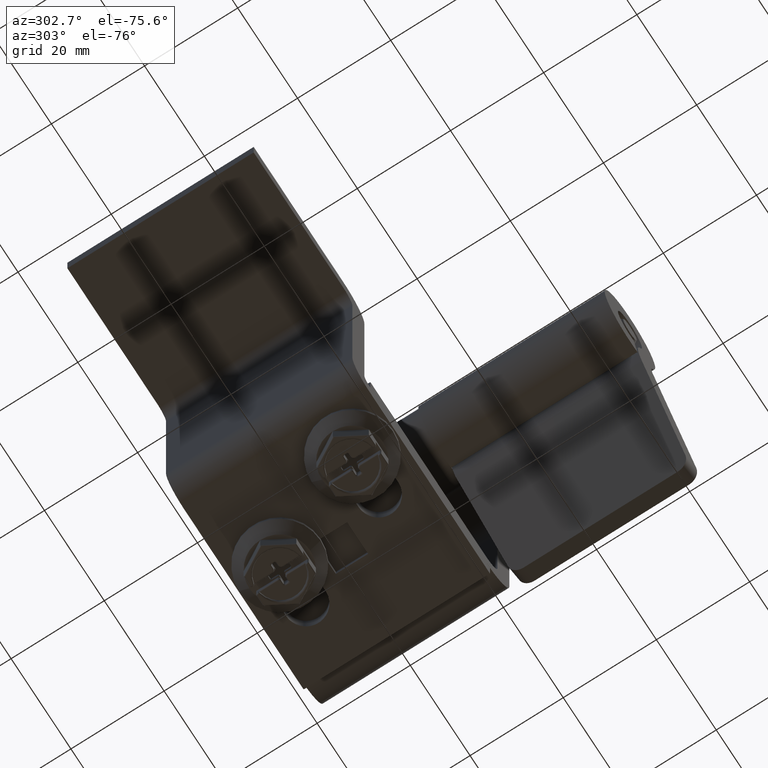
[diagram: clean part render]
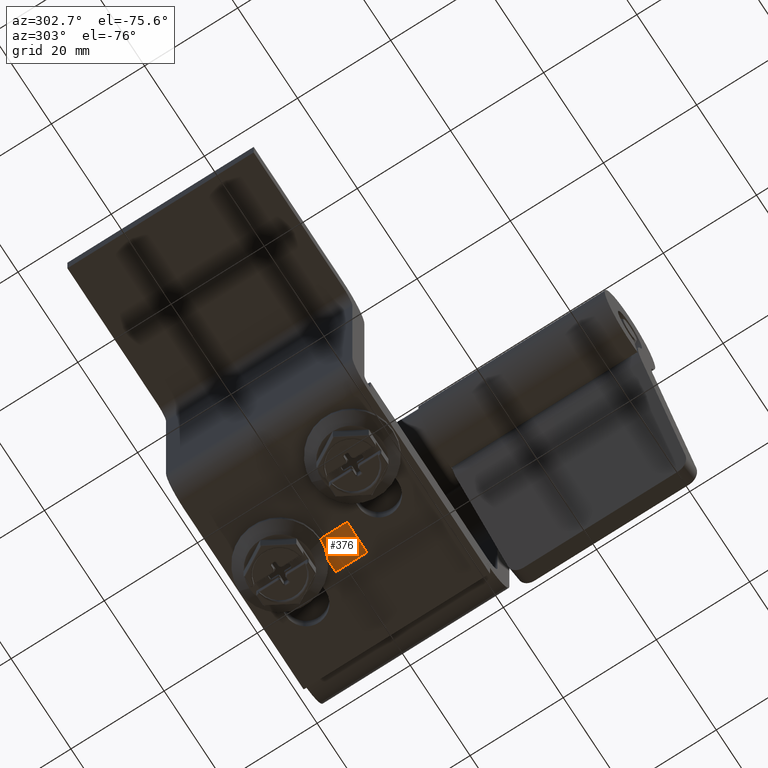
[diagram: same view with one face highlighted and labeled with its STEP entity id]
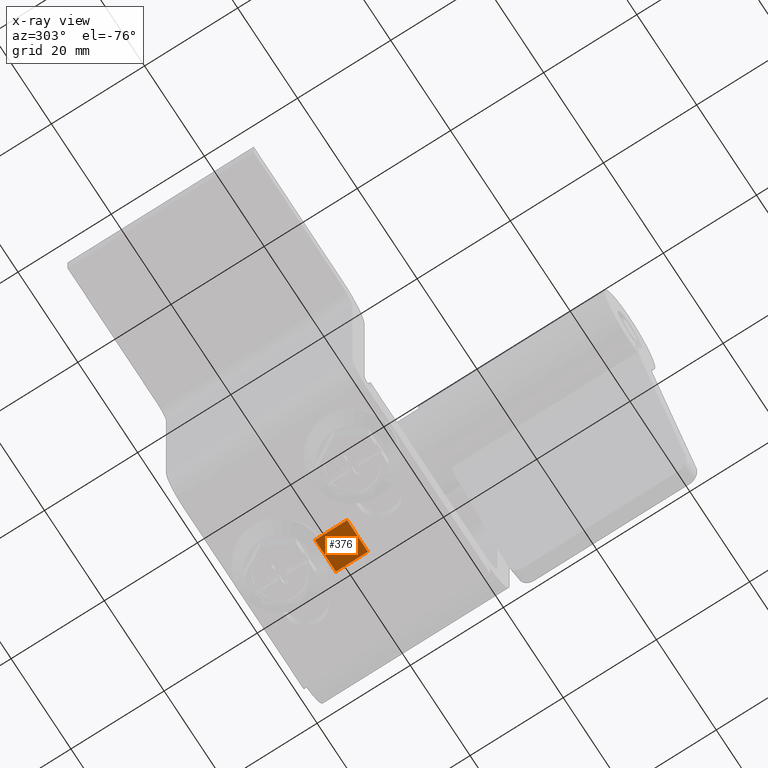
[diagram: x-ray of the same camera — body ghosted, the highlighted face saturated]
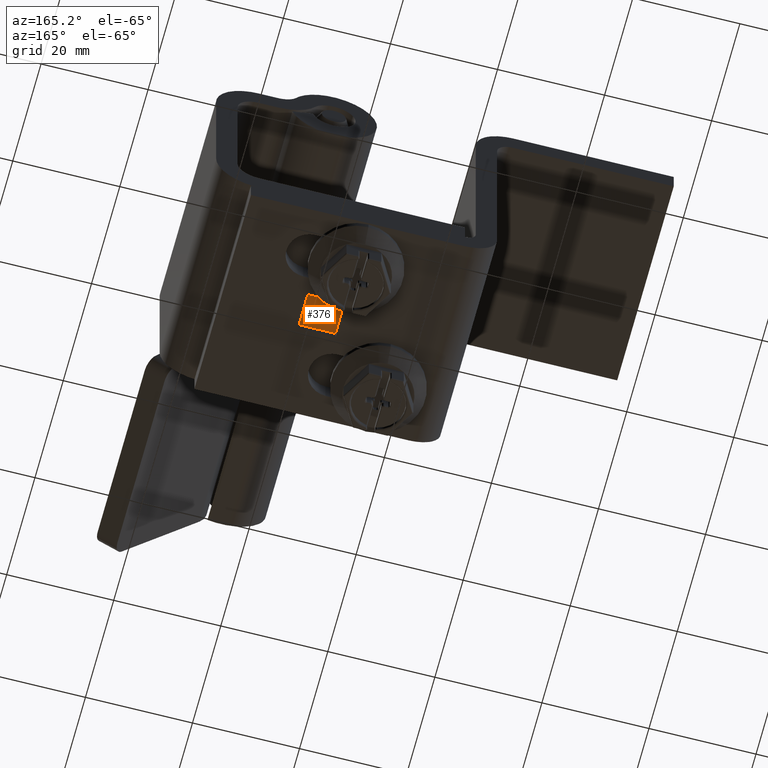
[diagram: same view with one face highlighted and labeled with its STEP entity id]
A machine part, auxiliary view. The second image highlights one B-rep face of the part: STEP entity #376.
The next image is the same camera in x-ray: the body ghosted, the highlighted face saturated — about 0% of this face is hidden behind the body in this view.
A second angle (auxiliary view) of the same face is appended — the face is thin or edge-on in the first view.
In plain terms, the highlighted planar face has unit normal (0, 0, 1).
Its self-contained STEP definition (entity closure, byte-faithful):
#376=ADVANCED_FACE('',(#1172),#1171,.F.);
#1171=PLANE('',#3972);
#1172=FACE_OUTER_BOUND('',#3973,.T.);
#3969=CARTESIAN_POINT('',(-7.20000000000E+00,-4.14000000000E+00,-4.07000000000E+01));
#3970=DIRECTION('',(0.00000000000E+00,0.00000000000E+00,1.00000000000E+00));
#3971=DIRECTION('',(1.00000000000E+00,0.00000000000E+00,0.00000000000E+00));
#3972=AXIS2_PLACEMENT_3D('',#3969,#3970,#3971);
#3973=EDGE_LOOP('',(#6039,#6040,#6041,#6042));
#6039=ORIENTED_EDGE('',*,*,#7393,.T.);
#6040=ORIENTED_EDGE('',*,*,#7391,.F.);
#6041=ORIENTED_EDGE('',*,*,#7389,.F.);
#6042=ORIENTED_EDGE('',*,*,#7387,.T.);
#7387=EDGE_CURVE('',#8908,#8901,#8909,.T.);
#7389=EDGE_CURVE('',#8908,#8921,#8922,.T.);
#7391=EDGE_CURVE('',#8921,#8934,#8935,.T.);
#7393=EDGE_CURVE('',#8901,#8934,#8947,.T.);
#8901=VERTEX_POINT('',#13739);
#8908=VERTEX_POINT('',#13743);
#8909=LINE('',#13744,#13745);
#8921=VERTEX_POINT('',#13750);
#8922=LINE('',#13751,#13752);
#8934=VERTEX_POINT('',#13757);
#8935=LINE('',#13758,#13759);
#8947=LINE('',#13764,#13765);
#13739=CARTESIAN_POINT('',(5.00000000000E-01,3.45000000000E+00,-4.07000000000E+01));
#13743=CARTESIAN_POINT('',(-6.50000000000E+00,3.45000000000E+00,-4.07000000000E+01));
#13744=CARTESIAN_POINT('',(-6.50000000000E+00,3.45000000000E+00,-4.07000000000E+01));
#13745=VECTOR('',#13746,7.00000000000E+00);
#13746=DIRECTION('',(1.00000000000E+00,0.00000000000E+00,0.00000000000E+00));
#13750=CARTESIAN_POINT('',(-6.50000000000E+00,-3.45000000000E+00,-4.07000000000E+01));
#13751=CARTESIAN_POINT('',(-6.50000000000E+00,3.45000000000E+00,-4.07000000000E+01));
#13752=VECTOR('',#13753,6.90000000000E+00);
#13753=DIRECTION('',(0.00000000000E+00,-1.00000000000E+00,0.00000000000E+00));
#13757=CARTESIAN_POINT('',(5.00000000000E-01,-3.45000000000E+00,-4.07000000000E+01));
#13758=CARTESIAN_POINT('',(-6.50000000000E+00,-3.45000000000E+00,-4.07000000000E+01));
#13759=VECTOR('',#13760,7.00000000000E+00);
#13760=DIRECTION('',(1.00000000000E+00,0.00000000000E+00,0.00000000000E+00));
#13764=CARTESIAN_POINT('',(5.00000000000E-01,3.45000000000E+00,-4.07000000000E+01));
#13765=VECTOR('',#13766,6.90000000000E+00);
#13766=DIRECTION('',(0.00000000000E+00,-1.00000000000E+00,0.00000000000E+00));